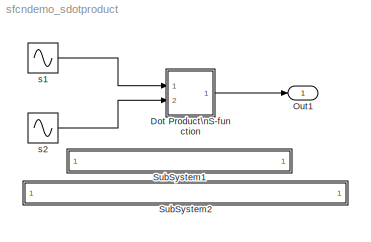
MODEL sfcndemo_sdotproduct
KIND model
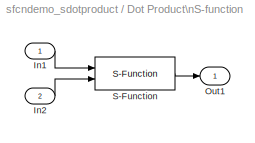
BLOCK [SubSystem] Dot Product\nS-function
  MaskDescription = Inner (dot) product.\ny=sum(u1.*u2)
  MaskDisplay = patch([x*r+0.5],[y*r+0.5]);disp('\\n\\ns-func');
  MaskHelp = Computes the inner (dot) product of the inputs: sum(u1.*u2).  The inputs are vectors of the same length. Output is a scalar.
  MaskIconFrame = on
  MaskIconOpaque = on
  MaskIconRotate = none
  MaskIconUnits = normalized
  MaskInitialization = t=(0:.1:2*pi)';\nx=cos(t);\ny=sin(t);\nr=0.05;
  MaskType = S-function: Dot Product
  MinAlgLoopOccurrences = off
  Ports = [2, 1]
  PropExecContextAcrossSSBoundary = on
  RTWSystemCode = Auto
  TreatAsAtomicUnit = off
BLOCK [Inport] Dot Product\nS-function/In1
  IconDisplay = Port number
  LatchInput = off
  Port = 1
BLOCK [Inport] Dot Product\nS-function/In2
  IconDisplay = Port number
  LatchInput = off
  Port = 2
BLOCK [Outport] Dot Product\nS-function/Out1
  IconDisplay = Port number
BLOCK [S-Function] Dot Product\nS-function/S-Function
  FunctionName = sdotproduct
  Ports = [2, 1]
BLOCK [Outport] Out1
  IconDisplay = Port number
BLOCK [SubSystem] SubSystem1
  AttributesFormatString = \\n
  MaskDisplay = disp(x);
  MaskEnableString = on
  MaskIconFrame = on
  MaskIconOpaque = on
  MaskIconRotate = none
  MaskIconUnits = autoscale
  MaskInitialization = x=sfundemo_maskdisp;
  MaskPromptString = filename
  MaskStyleString = edit
  MaskToolTipString = on
  MaskTunableValueString = off
  MaskValueString = sdotproduct.c
  MaskVariables = filename=&1;
  MaskVisibilityString = on
  MinAlgLoopOccurrences = off
  OpenFcn = sfundemo_openfcn
  Ports = []
  PropExecContextAcrossSSBoundary = on
  RTWSystemCode = Auto
  TreatAsAtomicUnit = off
BLOCK [SubSystem] SubSystem2
  AttributesFormatString = <path>
  MaskDisplay = disp(x)
  MaskEnableString = on
  MaskIconFrame = on
  MaskIconOpaque = on
  MaskIconRotate = none
  MaskIconUnits = autoscale
  MaskInitialization = x=sfundemo_maskdisp;
  MaskPromptString = file name
  MaskStyleString = edit
  MaskToolTipString = on
  MaskTunableValueString = off
  MaskValueString = sdotproduct.tlc
  MaskVariables = filename=&1;
  MaskVisibilityString = on
  MinAlgLoopOccurrences = off
  OpenFcn = sfundemo_openfcn
  Ports = []
  PropExecContextAcrossSSBoundary = on
  RTWSystemCode = Auto
  TreatAsAtomicUnit = off
BLOCK [Sin] s1
  Amplitude = [1:20]
  Ports = [0, 1]
  SampleTime = 0
  SineType = Time based
BLOCK [Sin] s2
  Amplitude = 21:40
  Phase = pi/2
  Ports = [0, 1]
  SampleTime = 0
  SineType = Time based
LINE Dot Product\nS-function/In1:1 -> Dot Product\nS-function/S-Function:1
LINE Dot Product\nS-function/In2:1 -> Dot Product\nS-function/S-Function:2
LINE Dot Product\nS-function/S-Function:1 -> Dot Product\nS-function/Out1:1
LINE Dot Product\nS-function:1 -> Out1:1
LINE s1:1 -> Dot Product\nS-function:1
LINE s2:1 -> Dot Product\nS-function:2
note: 1 file-system path scrubbed to <path> (not preserved elsewhere — flat text is the only slx artifact)
